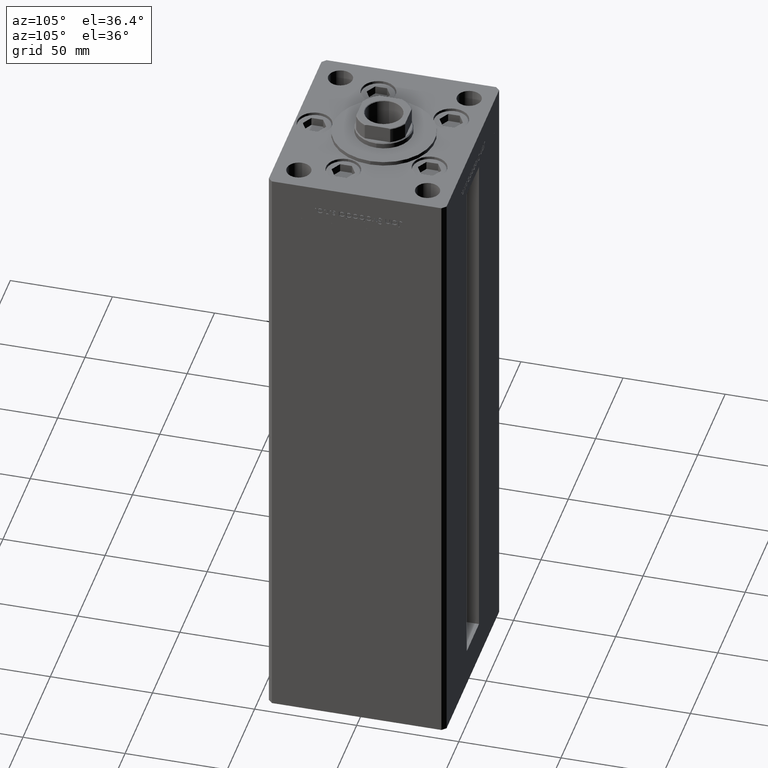
[diagram: clean part render]
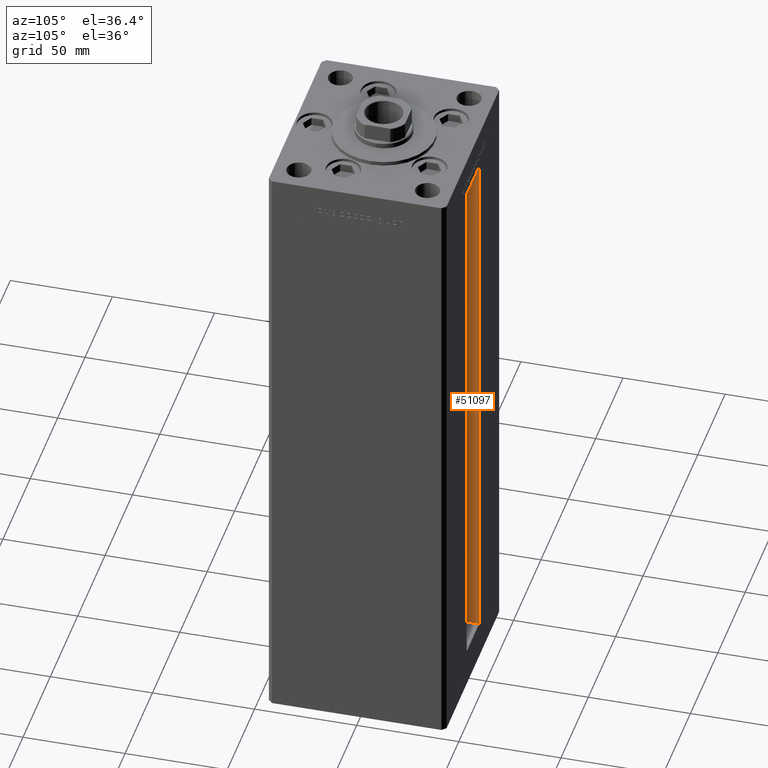
[diagram: same view with one face highlighted and labeled with its STEP entity id]
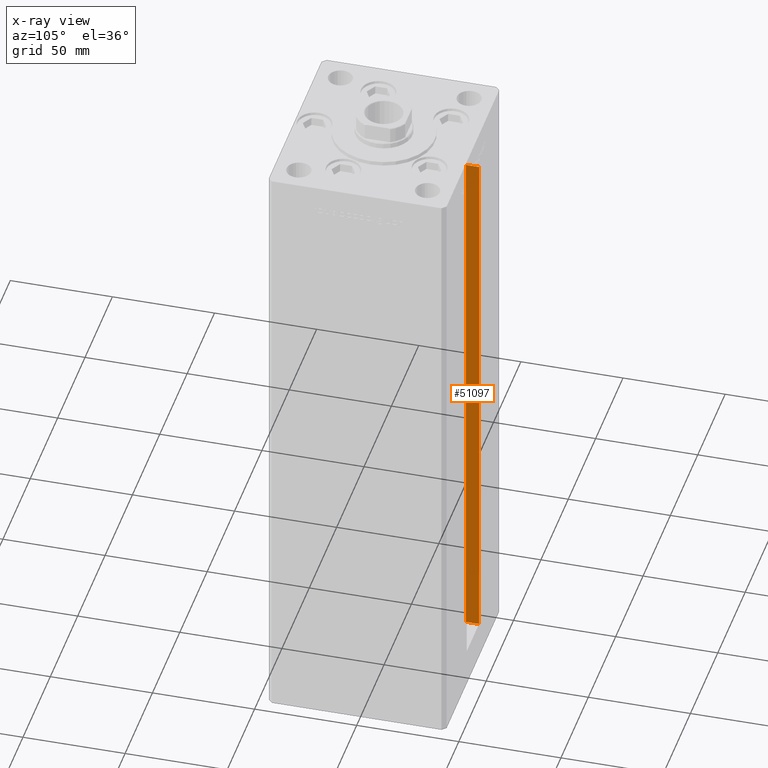
[diagram: x-ray of the same camera — body ghosted, the highlighted face saturated]
A machine part, auxiliary view. The second image highlights one B-rep face of the part: STEP entity #51097.
The next image is the same camera in x-ray: the body ghosted, the highlighted face saturated — about 0% of this face is hidden behind the body in this view.
In plain terms, the highlighted planar face has unit normal (-1, 0, 0).
Its self-contained STEP definition (entity closure, byte-faithful):
#516 = FACE_OUTER_BOUND ( 'NONE', #48052, .T. ) ;
#3882 = VERTEX_POINT ( 'NONE', #12801 ) ;
#5391 = ORIENTED_EDGE ( 'NONE', *, *, #18010, .F. ) ;
#5405 = VECTOR ( 'NONE', #22355, 1000.000000000000000 ) ;
#7813 = AXIS2_PLACEMENT_3D ( 'NONE', #12674, #48278, #32977 ) ;
#8663 = LINE ( 'NONE', #36888, #24898 ) ;
#10646 = ORIENTED_EDGE ( 'NONE', *, *, #27331, .F. ) ;
#11004 = EDGE_CURVE ( 'NONE', #3882, #28840, #34234, .T. ) ;
#12674 = CARTESIAN_POINT ( 'NONE',  ( -11.24999999999999822, 36.99999999999999289, 0.000000000000000000 ) ) ;
#12801 = CARTESIAN_POINT ( 'NONE',  ( -11.24999999999999822, 36.99999999999999289, 268.5000000000000000 ) ) ;
#13180 = PLANE ( 'NONE',  #7813 ) ;
#13346 = VECTOR ( 'NONE', #45785, 1000.000000000000000 ) ;
#13405 = CARTESIAN_POINT ( 'NONE',  ( -11.24999999999999822, 0.000000000000000000, 268.5000000000000000 ) ) ;
#14800 = LINE ( 'NONE', #30900, #29107 ) ;
#15422 = CARTESIAN_POINT ( 'NONE',  ( -11.24999999999999822, 36.99999999999999289, 0.000000000000000000 ) ) ;
#18010 = EDGE_CURVE ( 'NONE', #35249, #20203, #14800, .T. ) ;
#19725 = EDGE_CURVE ( 'NONE', #35249, #28840, #8663, .T. ) ;
#20203 = VERTEX_POINT ( 'NONE', #15422 ) ;
#22297 = LINE ( 'NONE', #41306, #13346 ) ;
#22355 = DIRECTION ( 'NONE',  ( 0.000000000000000000, 1.000000000000000000, 0.000000000000000000 ) ) ;
#22926 = ORIENTED_EDGE ( 'NONE', *, *, #19725, .T. ) ;
#24898 = VECTOR ( 'NONE', #49016, 1000.000000000000000 ) ;
#26087 = ORIENTED_EDGE ( 'NONE', *, *, #11004, .F. ) ;
#27331 = EDGE_CURVE ( 'NONE', #20203, #3882, #22297, .T. ) ;
#28840 = VERTEX_POINT ( 'NONE', #38219 ) ;
#29107 = VECTOR ( 'NONE', #43023, 1000.000000000000000 ) ;
#30900 = CARTESIAN_POINT ( 'NONE',  ( -11.24999999999999822, 36.99999999999999289, 0.000000000000000000 ) ) ;
#32977 = DIRECTION ( 'NONE',  ( 0.000000000000000000, 0.000000000000000000, 1.000000000000000000 ) ) ;
#33005 = CARTESIAN_POINT ( 'NONE',  ( -11.24999999999999822, 43.50000000000000000, 0.000000000000000000 ) ) ;
#34234 = LINE ( 'NONE', #13405, #5405 ) ;
#35249 = VERTEX_POINT ( 'NONE', #33005 ) ;
#36888 = CARTESIAN_POINT ( 'NONE',  ( -11.24999999999999822, 43.50000000000000000, 0.000000000000000000 ) ) ;
#38219 = CARTESIAN_POINT ( 'NONE',  ( -11.24999999999999822, 43.50000000000000000, 268.5000000000000000 ) ) ;
#41306 = CARTESIAN_POINT ( 'NONE',  ( -11.24999999999999822, 36.99999999999999289, 0.000000000000000000 ) ) ;
#43023 = DIRECTION ( 'NONE',  ( -0.000000000000000000, -1.000000000000000000, -0.000000000000000000 ) ) ;
#45785 = DIRECTION ( 'NONE',  ( -0.000000000000000000, -0.000000000000000000, 1.000000000000000000 ) ) ;
#48052 = EDGE_LOOP ( 'NONE', ( #10646, #5391, #22926, #26087 ) ) ;
#48278 = DIRECTION ( 'NONE',  ( -1.000000000000000000, 0.000000000000000000, 0.000000000000000000 ) ) ;
#49016 = DIRECTION ( 'NONE',  ( -0.000000000000000000, -0.000000000000000000, 1.000000000000000000 ) ) ;
#51097 = ADVANCED_FACE ( 'NONE', ( #516 ), #13180, .F. ) ;